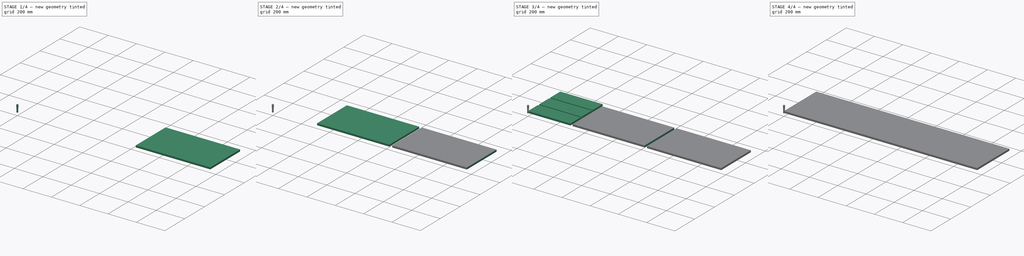
[diagram: build sequence overview — one tinted view per stage of 4, left to right]
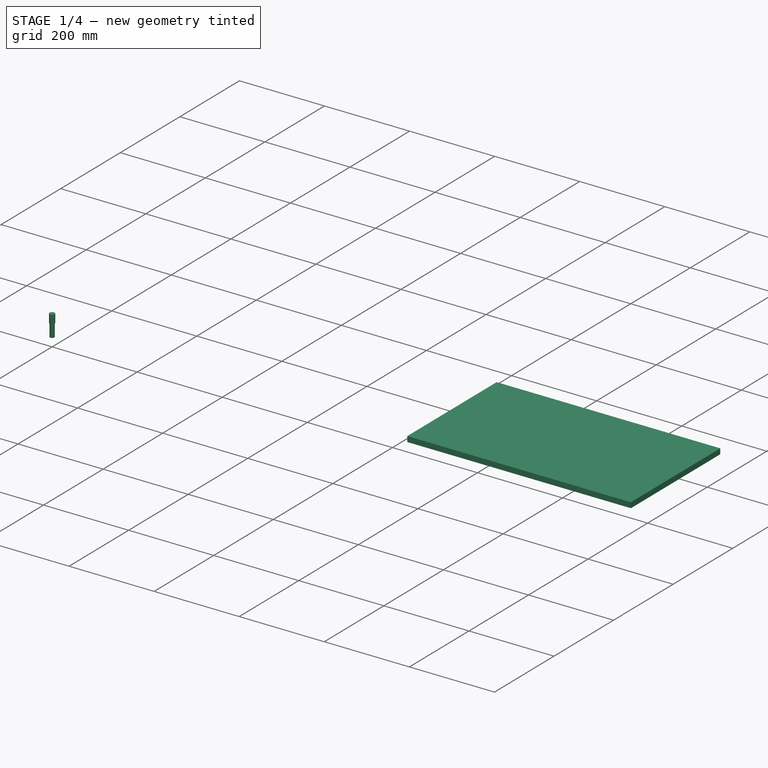
[diagram: stage 1 of 4 — iso view after this stage's code; geometry added in this stage tinted green]
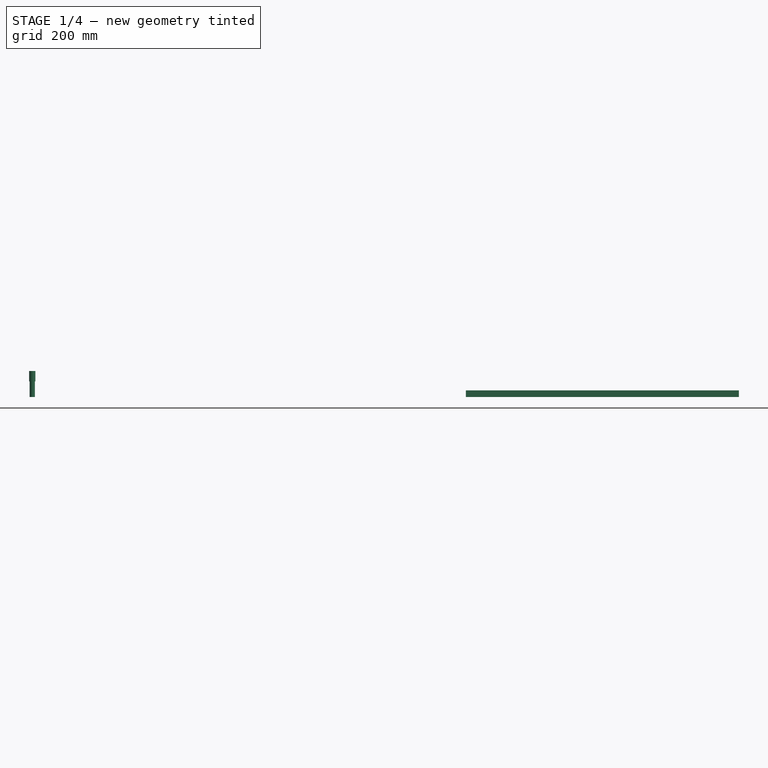
[diagram: stage 1 of 4 — front view after this stage's code; geometry added in this stage tinted green]
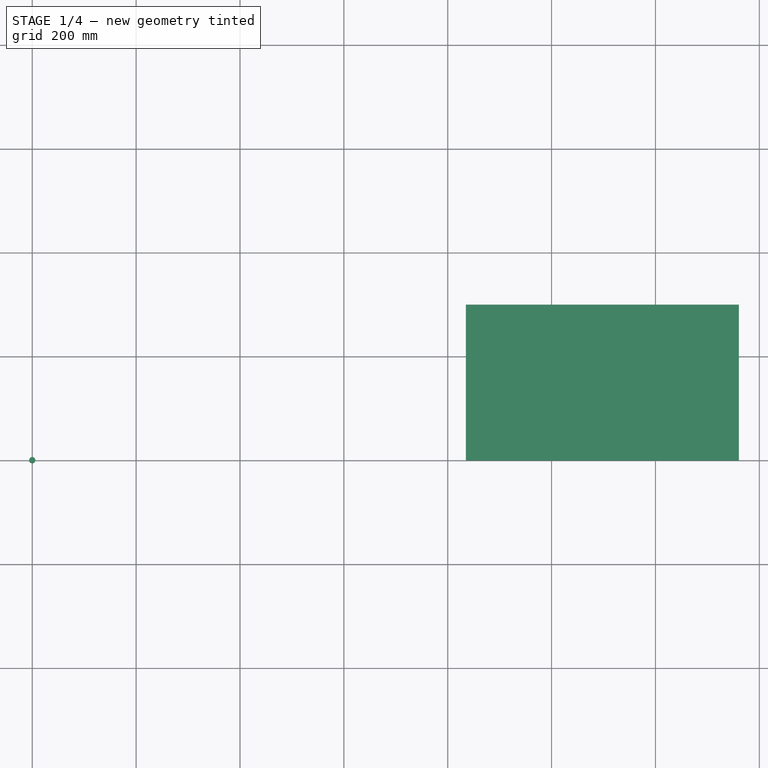
[diagram: stage 1 of 4 — top view after this stage's code; geometry added in this stage tinted green]
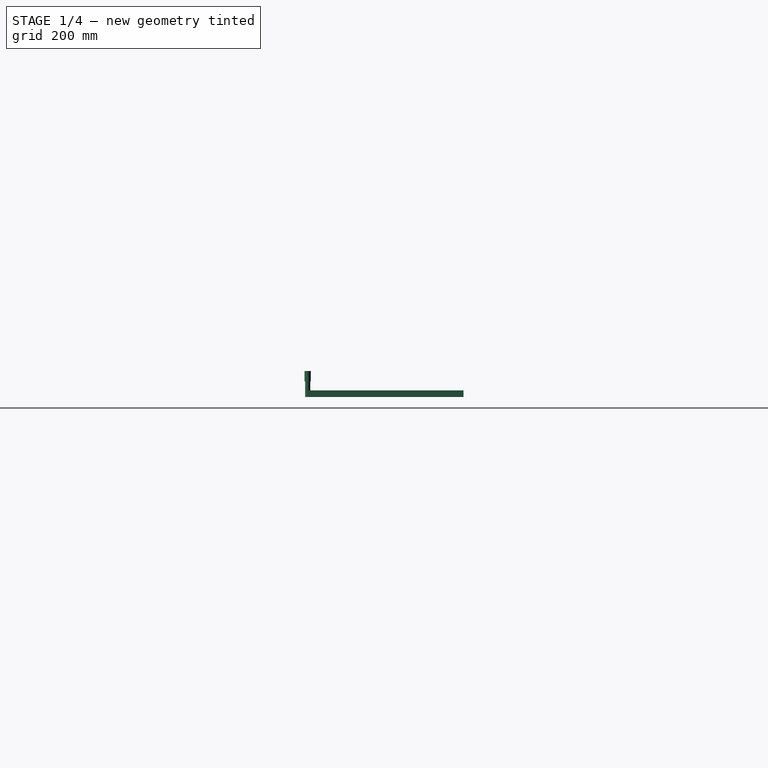
[diagram: stage 1 of 4 — right view after this stage's code; geometry added in this stage tinted green]
FCSTD DOCUMENT  (FreeCAD 0.20RUnknown)
Label: Brownbuilt
License: All rights reserved
LicenseURL: http://en.wikipedia.org/wiki/All_rights_reserved
objects: Path::FeaturePython×7, Part::FeaturePython×5, Sketcher::SketchObject×4, PartDesign::Pad×3, PartDesign::Body×3, App::DocumentObjectGroup×3, PartDesign::Pocket×1, App::FeaturePython×1
note: 23 computed .brp shape members not serialized (recipe doc carries the construction recipe); baked Part::Feature solids carry a one-line shape summary decoded from their .brp

FEATURE [PartDesign::Body] Body001  label="Shelf"
  Group = -> [Sketch001,Pad001]
  Origin = -> Origin001
  Placement = pos=(3,0,0) rot=(0,0,1;0rad)
  Tip = -> Pad001
FEATURE [Sketcher::SketchObject] Sketch003
  FullyConstrained = true
  MapMode = 5
  Support = -> [XY_Plane002]
  expr: Constraints[9] = 500 + 12.8 * 2
  sketch-geometry (4):
    g0: LineSegment StartX=835 StartY=300 StartZ=0 EndX=1360.6 EndY=300 EndZ=0
    g1: LineSegment StartX=1360.6 StartY=300 StartZ=0 EndX=1360.6 EndY=0 EndZ=0
    g2: LineSegment StartX=1360.6 StartY=0 StartZ=0 EndX=835 EndY=0 EndZ=0
    g3: LineSegment StartX=835 StartY=0 StartZ=0 EndX=835 EndY=300 EndZ=0
  constraints (12):
    c: Coincident(g0,g1)
    c: Coincident(g1,g2)
    c: Coincident(g2,g3)
    c: Coincident(g3,g0)
    c: Horizontal(g0)
    c: Horizontal(g2)
    c: Vertical(g1)
    c: Vertical(g3)
    c: DistanceY(g3,g3) = 300
    c: DistanceX(g0,g0) = 525.6
    c: PointOnObject(g-1,g2)
    c: DistanceX(g-1,g2) = 835
FEATURE [PartDesign::Pad] Pad002
  Direction = (0,0,1)
  Length = 12.7
  Length2 = 10
  Profile = -> Sketch003
  ReferenceAxis = -> Sketch003 [N_Axis]
  Type = 0
FEATURE [Part::FeaturePython] ToolBit001  label="10mm_Endmill"  # Path/CAM toolbit (typed FeaturePython)
  BitPropertyNames = Chipload | CuttingEdgeHeight | Diameter | Flutes | Length | Material | ShankDiameter | SpindleDirection
  BitShape = <path>
  Chipload = 0
  CuttingEdgeHeight = 30
  Diameter = 10
  File = <userpath>/MensShed/CNCRouter/FreeCAD/Bit/10mm_Endmill.fctb
  Flutes = 0
  Length = 50
  Material = 0
  ShankDiameter = 12
  ShapeName = endmill
  SpindleDirection = 0
FEATURE [Path::FeaturePython] _0mm_Endmill  label="10mm_Endmill001"  # Path/CAM operation (typed FeaturePython)
  HorizFeed = 15
  HorizRapid = 0
  SpindleDir = 0
  SpindleSpeed = 10000
  Tool = -> ToolBit001
  ToolNumber = 2
  VertFeed = 5
  VertRapid = 0
  expr: HorizRapid = SetupSheet.HorizRapid
  expr: VertRapid = SetupSheet.VertRapid
FEATURE [App::DocumentObjectGroup] Tools
  Group = -> [_0mm_Endmill]
FEATURE [Path::FeaturePython] Profile  label="Slots"  # Path/CAM operation (typed FeaturePython)
  Active = true
  Base = -> [Clone001]
  ClearanceHeight = 17.7
  CoolantMode = 0
  CycleTime = 00:01:54
  Direction = 0
  FinalDepth = 7.7
  HandleMultipleFeatures = 0
  JoinType = 0
  MiterLimit = 0.1
  OffsetExtra = 0
  OpFinalDepth = 12.7
  OpStartDepth = 17.7
  OpStockZMax = 12.7
  OpStockZMin = 0
  OpToolDiameter = 10
  PathParams = {'feedrate': 15.0, 'feedrate_v': 5.0, 'verbose': True, 'resume_height': 15.7, 'retraction': 17.7, 'return_end': True, 'preamble': False, 'start': Vector (299.99999990000003, 217.79999999999998, 17.7)}
  SafeHeight = 15.7
  Side = 1
  SplitArcs = false
  StartDepth = 12.7
  StartPoint = (0,0,0)
  StepDown = 5
  ToolController = -> _0mm_Endmill
  UseComp = true
  UseStartPoint = false
  processCircles = false
  processHoles = false
  processPerimeter = true
  expr: ClearanceHeight = OpStockZMax + SetupSheet.ClearanceHeightOffset
  expr: FinalDepth = 12.7 - 5
  expr: SafeHeight = OpStockZMax + SetupSheet.SafeHeightOffset
  expr: StartDepth = 12.7
  expr: StepDown = 5
FEATURE [Path::FeaturePython] Profile001  label="SideProfile"  # Path/CAM operation (typed FeaturePython)
  Active = true
  AreaParams:
    Tolerance = 1e-07
    FitArcs = True
    Simplify = False
    CleanDistance = 0.0
    Accuracy = 0.01
    Unit = 1.0
    MinArcPoints = 4
    MaxArcPoints = 100
    ClipperScale = 10000000.0
    Fill = 0
    Coplanar = 0
    Reorient = True
    Outline = False
    Explode = False
    OpenMode = 0
    Deflection = 0.01
    SubjectFill = 0
    ClipFill = 0
    Offset = 5.0
    ExtraPass = 0
    Stepover = 0.0
    LastStepover = 0.0
    JoinType = 0
    EndType = 0
    MiterLimit = 2.0
    RoundPrecision = 0.0
    PocketMode = 0
    ToolRadius = 1.0
    PocketExtraOffset = 0.0
    PocketStepover = 0.0
    PocketLastStepover = 0.0
    FromCenter = False
    Angle = 45.0
    AngleShift = 0.0
    Shift = 0.0
    Thicken = False
    SectionCount = -1
    Stepdown = 1.0
    SectionOffset = 0.0
    SectionTolerance = 1e-06
    SectionMode = 2
    Project = False
  Base = -> [Clone001]
  ClearanceHeight = 17.7
  CoolantMode = 0
  CycleTime = 00:04:55
  Direction = 0
  FinalDepth = 0
  HandleMultipleFeatures = 0
  JoinType = 0
  MiterLimit = 0.1
  OffsetExtra = 0
  OpFinalDepth = 0
  OpStartDepth = 12.7
  OpStockZMax = 12.7
  OpStockZMin = 0
  OpToolDiameter = 10
  PathParams = {'orientation': 1, 'feedrate': 15.0, 'feedrate_v': 5.0, 'verbose': True, 'resume_height': 15.7, 'retraction': 17.7, 'return_end': True, 'preamble': False}
  SafeHeight = 15.7
  Side = 0
  SplitArcs = false
  StartDepth = 12.7
  StartPoint = (0,0,0)
  StepDown = 5
  ToolController = -> _0mm_Endmill
  UseComp = true
  UseStartPoint = false
  processCircles = false
  processHoles = false
  processPerimeter = true
  expr: ClearanceHeight = OpStockZMax + SetupSheet.ClearanceHeightOffset
  expr: FinalDepth = 0
  expr: SafeHeight = OpStockZMax + SetupSheet.SafeHeightOffset
  expr: StartDepth = 12.7
  expr: StepDown = 5
FEATURE [Path::FeaturePython] Profile002  label="TopsShelves"  # Path/CAM operation (typed FeaturePython)
  Active = true
  AreaParams:
    Tolerance = 1e-07
    FitArcs = True
    Simplify = False
    CleanDistance = 0.0
    Accuracy = 0.01
    Unit = 1.0
    MinArcPoints = 4
    MaxArcPoints = 100
    ClipperScale = 10000000.0
    Fill = 0
    Coplanar = 0
    Reorient = True
    Outline = False
    Explode = False
    OpenMode = 0
    Deflection = 0.01
    SubjectFill = 0
    ClipFill = 0
    Offset = 5.0
    ExtraPass = 0
    Stepover = 0.0
    LastStepover = 0.0
    JoinType = 0
    EndType = 0
    MiterLimit = 2.0
    RoundPrecision = 0.0
    PocketMode = 0
    ToolRadius = 1.0
    PocketExtraOffset = 0.0
    PocketStepover = 0.0
    PocketLastStepover = 0.0
    FromCenter = False
    Angle = 45.0
    AngleShift = 0.0
    Shift = 0.0
    Thicken = False
    SectionCount = -1
    Stepdown = 1.0
    SectionOffset = 0.0
    SectionTolerance = 1e-06
    SectionMode = 2
    Project = False
  Base = -> [Clone,Clone002]
  ClearanceHeight = 17.7
  CoolantMode = 0
  CycleTime = 00:12:18
  Direction = 0
  FinalDepth = 0
  HandleMultipleFeatures = 0
  JoinType = 0
  MiterLimit = 0.1
  OffsetExtra = 0
  OpFinalDepth = 12.7
  OpStartDepth = 17.7
  OpStockZMax = 12.7
  OpStockZMin = 0
  OpToolDiameter = 10
  PathParams = {'orientation': 1, 'feedrate': 15.0, 'feedrate_v': 5.0, 'verbose': True, 'resume_height': 15.7, 'retraction': 17.7, 'return_end': True, 'preamble': False, 'start': Vector (828.5355338224005, 303.53553387240134, 17.7)}
  SafeHeight = 15.7
  Side = 0
  SplitArcs = false
  StartDepth = 12.7
  StartPoint = (0,0,0)
  StepDown = 5
  ToolController = -> _0mm_Endmill
  UseComp = true
  UseStartPoint = false
  processCircles = false
  processHoles = false
  processPerimeter = true
  expr: ClearanceHeight = OpStockZMax + SetupSheet.ClearanceHeightOffset
  expr: FinalDepth = 0
  expr: SafeHeight = OpStockZMax + SetupSheet.SafeHeightOffset
  expr: StartDepth = 12.7
  expr: StepDown = 5
FEATURE [Path::FeaturePython] DressupTag  # Path/CAM operation (typed FeaturePython)
  Angle = 45
  Base = -> Profile001
  Height = 2
  Positions = (4) [(305,244.2,0),(305,81.4,0),(-5,81.4,0),(-5,244.2,0)]
  Radius = 0
  SegmentationFactor = 50
  Width = 25
FEATURE [Path::FeaturePython] DressupTag001  # Path/CAM operation (typed FeaturePython)
  Angle = 45
  Base = -> Profile002
  Disabled = [3,7]
  Height = 2
  Positions = (8) [(830,198.27,1e-06),(830,66.65,1e-06),(310,71.99,1e-06),(310,238.8,1e-06),(1372.6,209.21,1e-06),(1372.6,64,1e-06),(837,75.71,1e-06),(837,203.4,1e-06)]
  Radius = 0
  SegmentationFactor = 50
  Width = 25
FEATURE [App::DocumentObjectGroup] Operations
  Group = -> [Profile,DressupTag,DressupTag001]
FEATURE [Path::FeaturePython] Job  # Path/CAM operation (typed FeaturePython)
  CycleTime = 00:19:07
  Fixtures = G54
  GeometryTolerance = 0.01
  JobType = 0
  Model = -> Model
  Operations = -> Operations
  OrderOutputBy = 0
  PostProcessor = 2
  PostProcessorOutputFile = %D/%d.ngc
  SetupSheet = -> SetupSheet
  SplitOutput = false
  Stock = -> Stock001
  Tools = -> Tools
note: 1 file-system path scrubbed to <path> (originals preserved in the JSON sidecar)
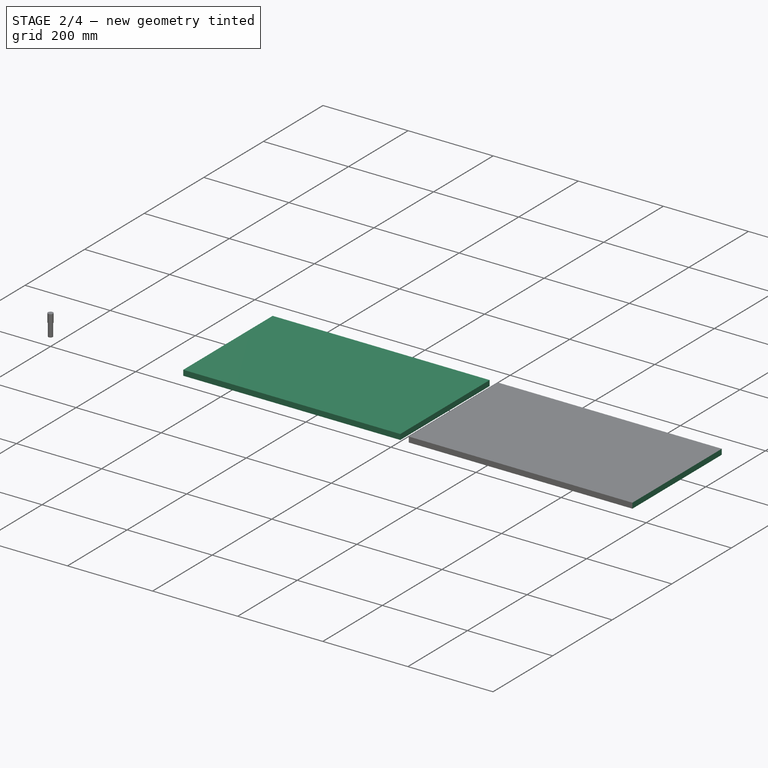
[diagram: stage 2 of 4 — iso view after this stage's code; geometry added in this stage tinted green]
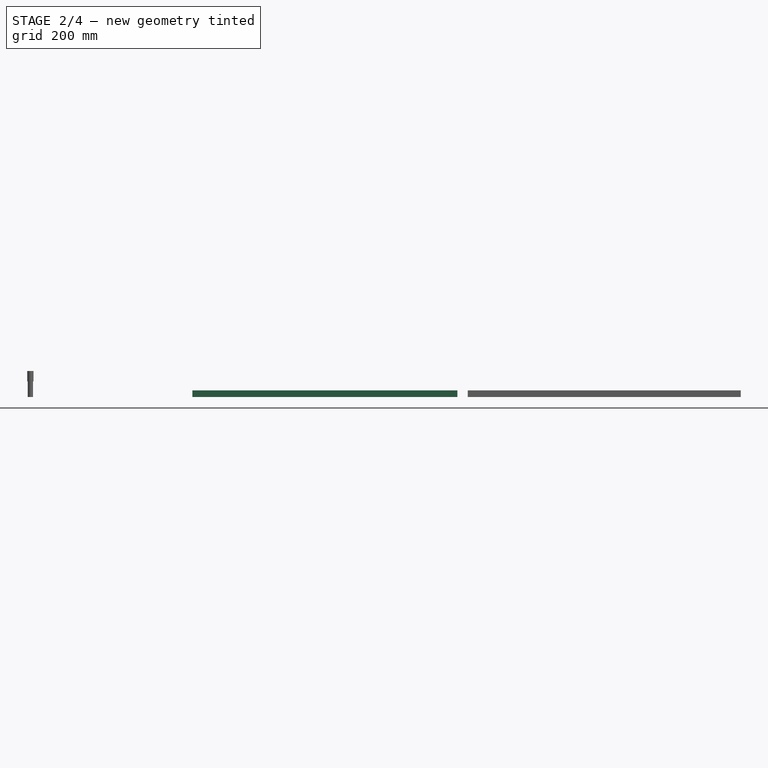
[diagram: stage 2 of 4 — front view after this stage's code; geometry added in this stage tinted green]
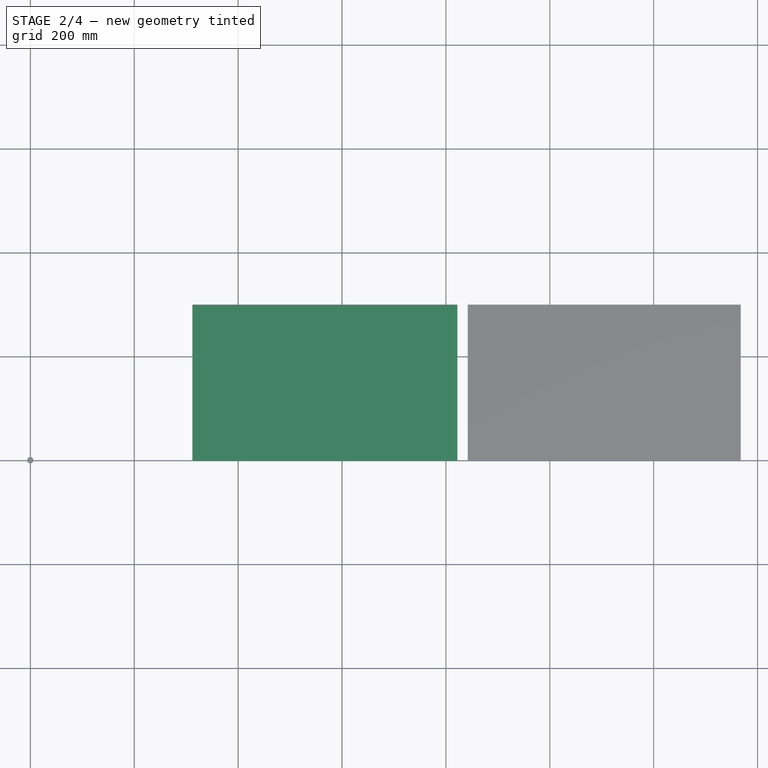
[diagram: stage 2 of 4 — top view after this stage's code; geometry added in this stage tinted green]
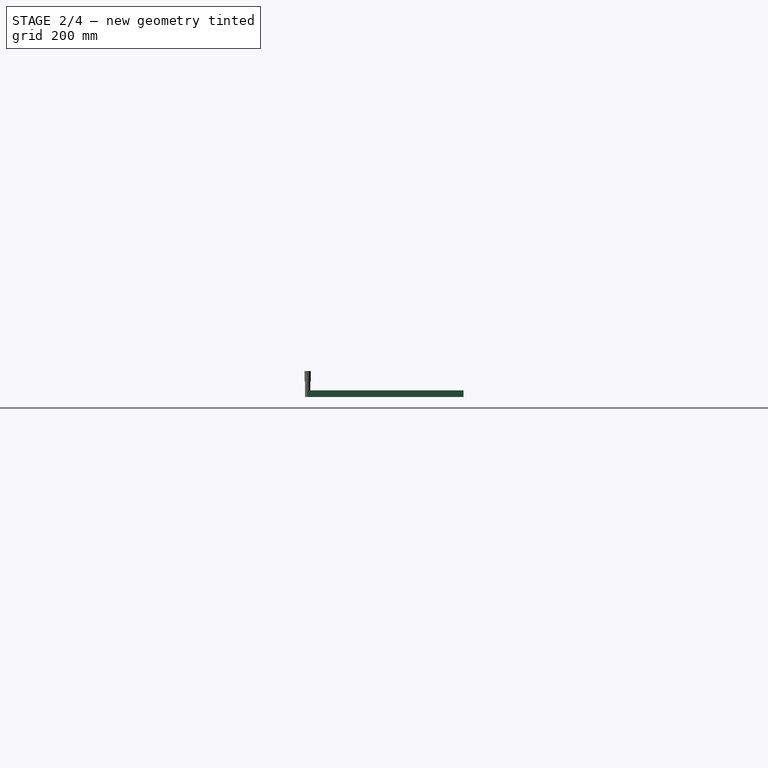
[diagram: stage 2 of 4 — right view after this stage's code; geometry added in this stage tinted green]
FEATURE [PartDesign::Body] Body  label="Side"
  Group = -> [Sketch,Pad,Sketch002,Pocket]
  Origin = -> Origin
  Tip = -> Pocket
FEATURE [PartDesign::Pad] Pad001
  Direction = (0,0,1)
  Length = 12.7
  Length2 = 10
  Profile = -> Sketch001
  ReferenceAxis = -> Sketch001 [N_Axis]
  Type = 0
FEATURE [Part::FeaturePython] Clone002  label="Model-Top"  # Draft clone (typed FeaturePython)
  AttacherType = Attacher::AttachEngine3D
  Fuse = false
  Objects = -> [Body002]
  PathResource = Model
  Placement = pos=(7,0,0) rot=(0,0,1;0rad)
  Scale = (1,1,1)
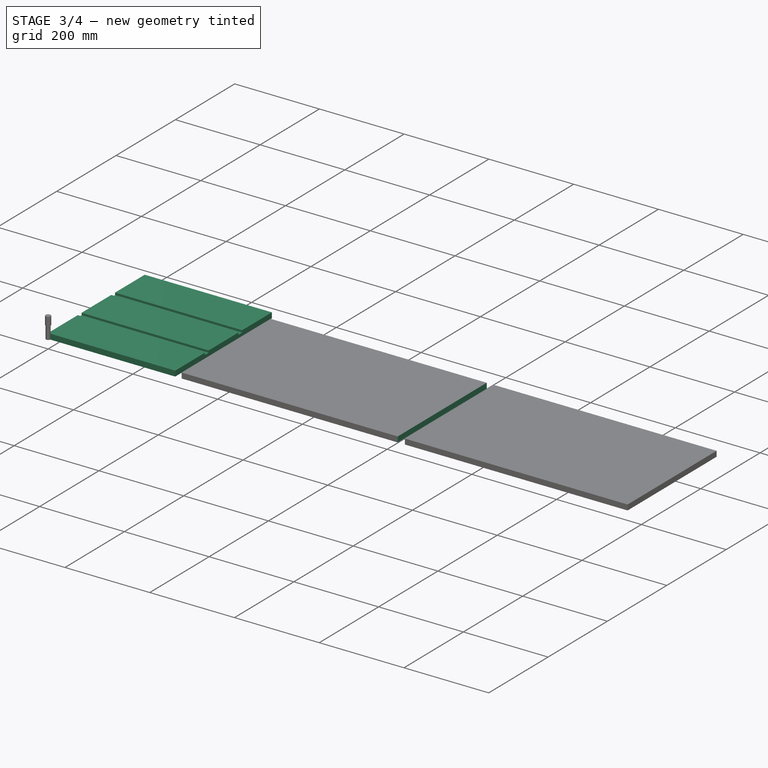
[diagram: stage 3 of 4 — iso view after this stage's code; geometry added in this stage tinted green]
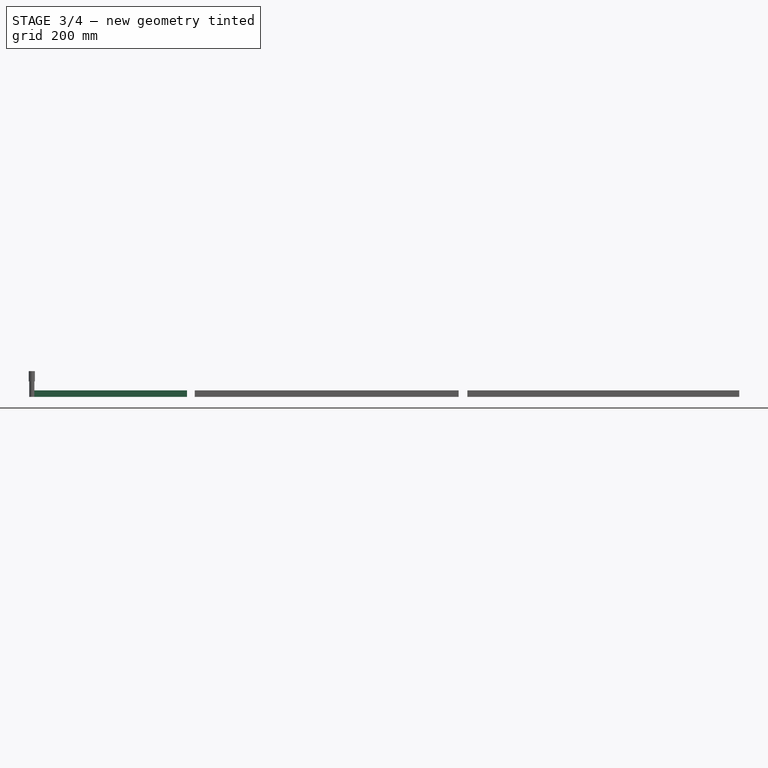
[diagram: stage 3 of 4 — front view after this stage's code; geometry added in this stage tinted green]
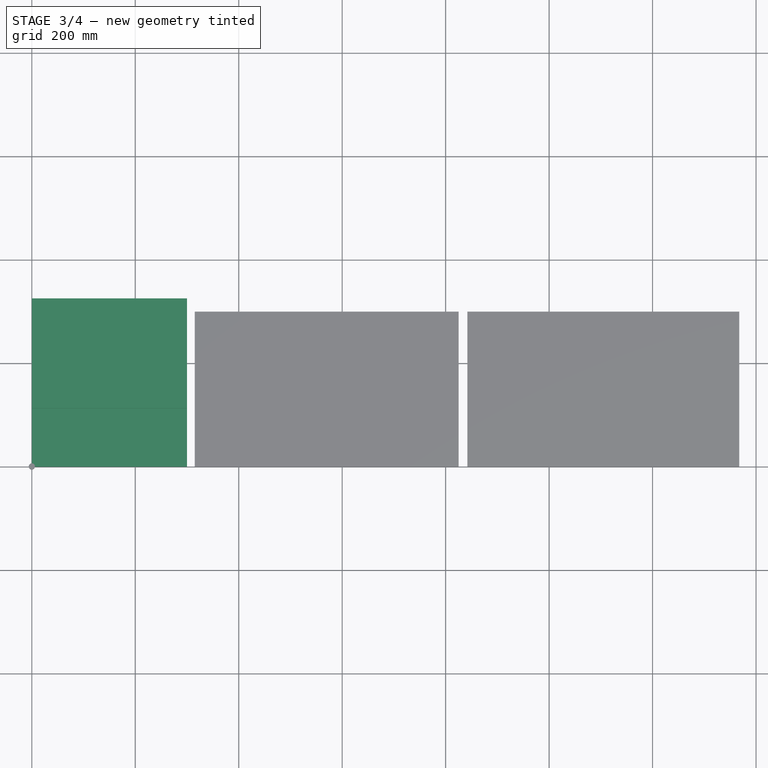
[diagram: stage 3 of 4 — top view after this stage's code; geometry added in this stage tinted green]
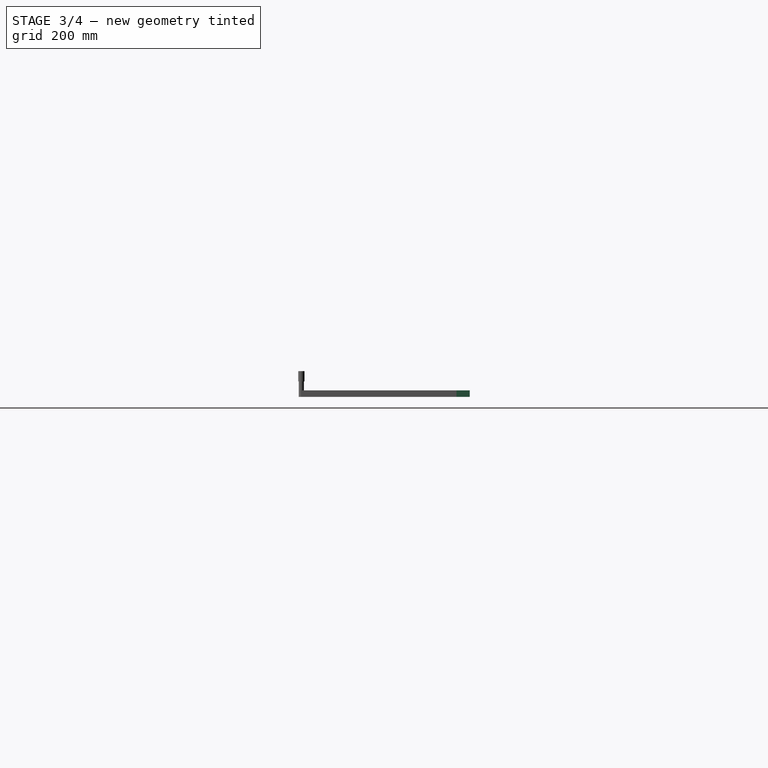
[diagram: stage 3 of 4 — right view after this stage's code; geometry added in this stage tinted green]
FEATURE [Sketcher::SketchObject] Sketch
  FullyConstrained = true
  MapMode = 5
  Support = -> [XY_Plane]
  sketch-geometry (4):
    g0: LineSegment StartX=0 StartY=0 StartZ=0 EndX=300 EndY=0 EndZ=0
    g1: LineSegment StartX=300 StartY=0 StartZ=0 EndX=300 EndY=325.6 EndZ=0
    g2: LineSegment StartX=300 StartY=325.6 StartZ=0 EndX=0 EndY=325.6 EndZ=0
    g3: LineSegment StartX=0 StartY=325.6 StartZ=0 EndX=0 EndY=0 EndZ=0
  constraints (11):
    c: Coincident(g0,g1)
    c: Coincident(g1,g2)
    c: Coincident(g2,g3)
    c: Coincident(g3,g0)
    c: Horizontal(g0)
    c: Horizontal(g2)
    c: Vertical(g1)
    c: Vertical(g3)
    c: Coincident(g0,g-1)
    c: DistanceX(g2,g2) = 300
    c: DistanceY(g3,g3) = 325.6
FEATURE [PartDesign::Pad] Pad
  Direction = (0,0,1)
  Length = 12.7
  Length2 = 10
  Profile = -> Sketch
  ReferenceAxis = -> Sketch [N_Axis]
  Type = 0
FEATURE [Sketcher::SketchObject] Sketch001
  FullyConstrained = true
  MapMode = 5
  Support = -> [XY_Plane001]
  sketch-geometry (4):
    g0: LineSegment StartX=312 StartY=0 StartZ=0 EndX=822 EndY=0 EndZ=0
    g1: LineSegment StartX=822 StartY=0 StartZ=0 EndX=822 EndY=300 EndZ=0
    g2: LineSegment StartX=822 StartY=300 StartZ=0 EndX=312 EndY=300 EndZ=0
    g3: LineSegment StartX=312 StartY=300 StartZ=0 EndX=312 EndY=0 EndZ=0
  constraints (12):
    c: Coincident(g0,g1)
    c: Coincident(g1,g2)
    c: Coincident(g2,g3)
    c: Coincident(g3,g0)
    c: Horizontal(g0)
    c: Horizontal(g2)
    c: Vertical(g1)
    c: Vertical(g3)
    c: DistanceY(g3,g3) = 300
    c: DistanceX(g2,g2) = 510
    c: PointOnObject(g0,g-1)
    c: DistanceX(g-1,g0) = 312
FEATURE [Sketcher::SketchObject] Sketch002
  FullyConstrained = true
  MapMode = 5
  Placement = pos=(0,0,12.7) rot=(0,0,1;0rad)
  Support = -> [Pad]
  sketch-geometry (8):
    g0: LineSegment StartX=0 StartY=225.6 StartZ=0 EndX=350 EndY=225.6 EndZ=0
    g1: LineSegment StartX=350 StartY=225.6 StartZ=0 EndX=350 EndY=212.8 EndZ=0
    g2: LineSegment StartX=350 StartY=212.8 StartZ=0 EndX=0 EndY=212.8 EndZ=0
    g3: LineSegment StartX=0 StartY=212.8 StartZ=0 EndX=0 EndY=225.6 EndZ=0
    g4: LineSegment StartX=0 StartY=112.8 StartZ=0 EndX=350 EndY=112.8 EndZ=0
    g5: LineSegment StartX=350 StartY=112.8 StartZ=0 EndX=350 EndY=100 EndZ=0
    g6: LineSegment StartX=350 StartY=100 StartZ=0 EndX=0 EndY=100 EndZ=0
    g7: LineSegment StartX=0 StartY=100 StartZ=0 EndX=0 EndY=112.8 EndZ=0
  constraints (24):
    c: Coincident(g0,g1)
    c: Coincident(g1,g2)
    c: Coincident(g2,g3)
    c: Coincident(g3,g0)
    c: Horizontal(g0)
    c: Horizontal(g2)
    c: Vertical(g1)
    c: Vertical(g3)
    c: Coincident(g4,g5)
    c: Coincident(g5,g6)
    c: Coincident(g6,g7)
    c: Coincident(g7,g4)
    c: Horizontal(g4)
    c: Horizontal(g6)
    c: Vertical(g5)
    c: Vertical(g7)
    c: PointOnObject(g4,g-2)
    c: DistanceX(g2,g2) = 350
    c: Equal(g4,g0)
    c: PointOnObject(g2,g-2)
    c: DistanceY(g3,g3) = 12.8
    c: Equal(g7,g3)
    c: DistanceY(g-1,g6) = 100
    c: DistanceY(g4,g2) = 100
FEATURE [PartDesign::Pocket] Pocket
  BaseFeature = -> Pad
  Direction = (0,0,-1)
  Length = 5
  Length2 = 5
  Profile = -> Sketch002
  ReferenceAxis = -> Sketch002 [N_Axis]
  Type = 0
FEATURE [PartDesign::Body] Body002  label="Top"
  Group = -> [Sketch003,Pad002]
  Origin = -> Origin002
  Placement = pos=(7,0,0) rot=(0,0,1;0rad)
  Tip = -> Pad002
FEATURE [App::FeaturePython] SetupSheet  # Path/CAM operation (typed FeaturePython)
  ClearanceHeightExpression = OpStockZMax+SetupSheet.ClearanceHeightOffset
  ClearanceHeightOffset = 5
  CoolantMode = 0
  CoolantModes = None | Flood | Mist
  FinalDepthExpression = OpFinalDepth
  HorizRapid = 0
  SafeHeightExpression = OpStockZMax+SetupSheet.SafeHeightOffset
  SafeHeightOffset = 3
  StartDepthExpression = OpStartDepth
  StepDownExpression = OpToolDiameter
  VertRapid = 0
FEATURE [Part::FeaturePython] Clone  label="Model-Shelf"  # Draft clone (typed FeaturePython)
  AttacherType = Attacher::AttachEngine3D
  Fuse = false
  Objects = -> [Body001]
  PathResource = Model
  Placement = pos=(3,0,0) rot=(0,0,1;0rad)
  Scale = (1,1,1)
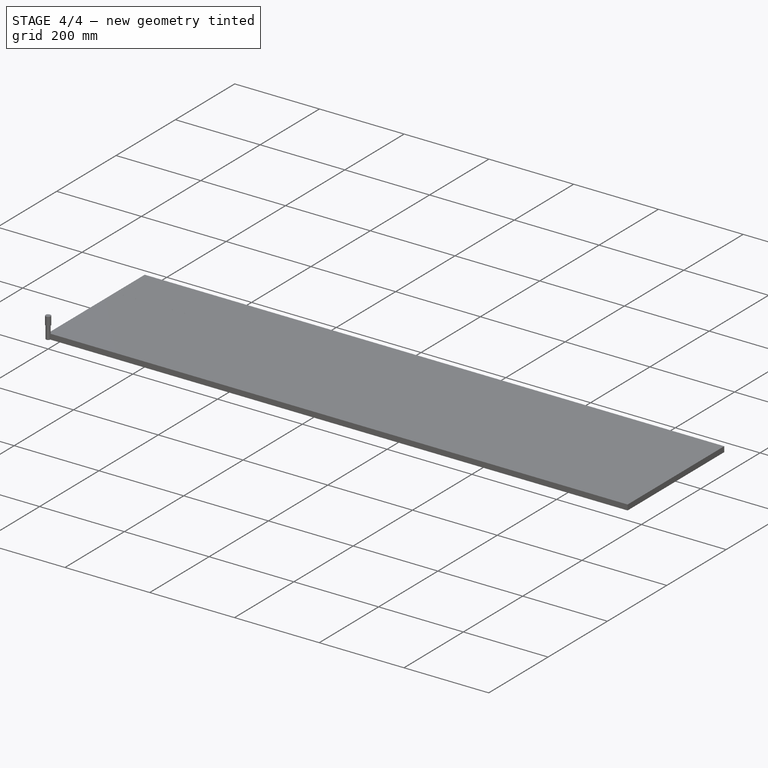
[diagram: stage 4 of 4 — iso view after this stage's code; geometry added in this stage tinted green]
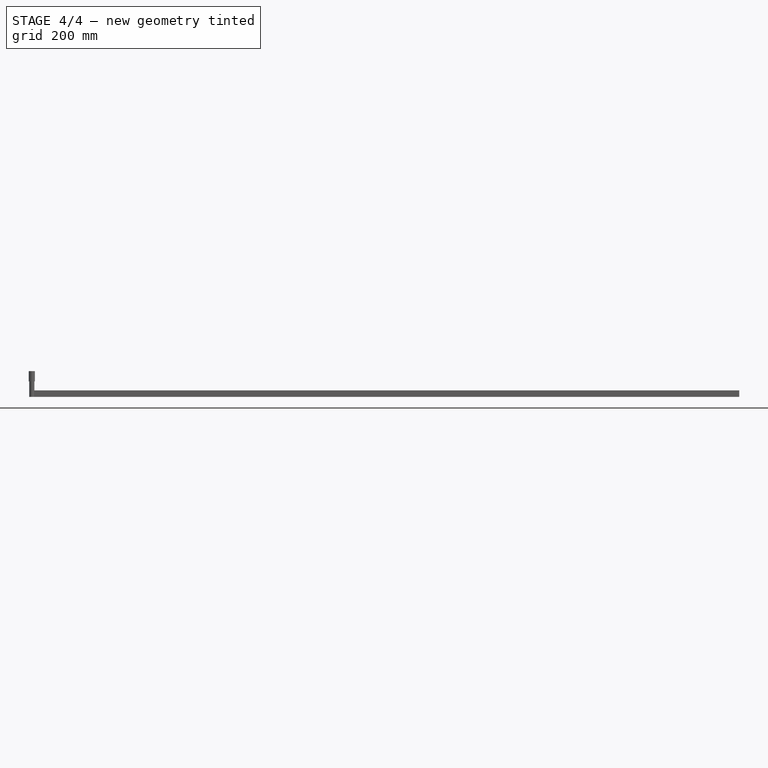
[diagram: stage 4 of 4 — front view after this stage's code; geometry added in this stage tinted green]
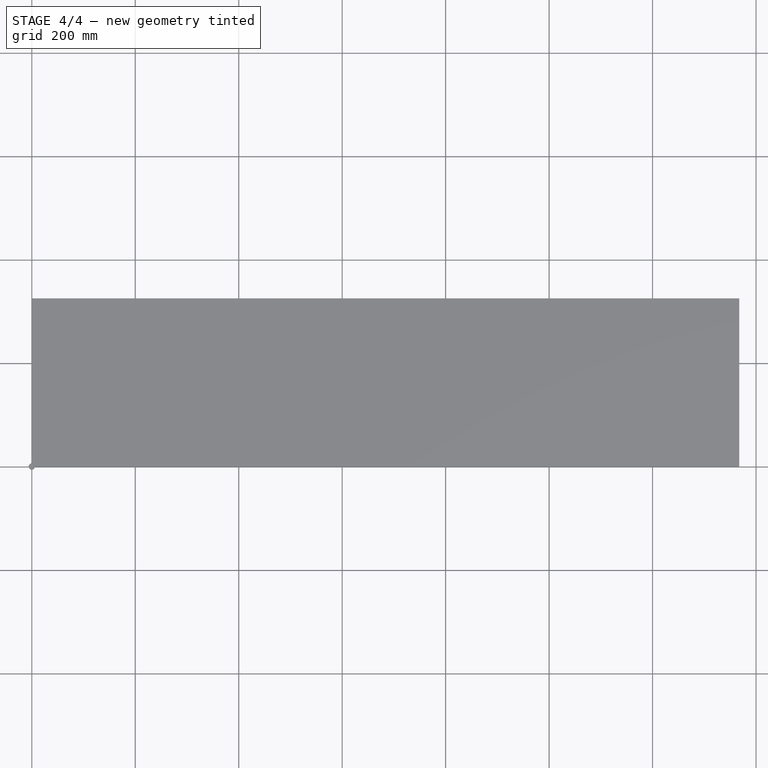
[diagram: stage 4 of 4 — top view after this stage's code; geometry added in this stage tinted green]
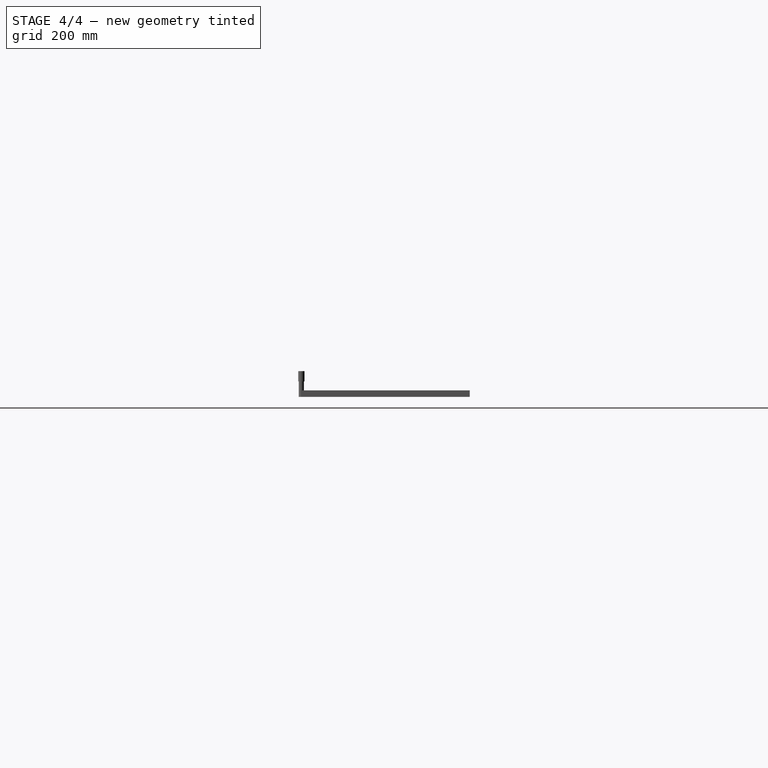
[diagram: stage 4 of 4 — right view after this stage's code; geometry added in this stage tinted green]
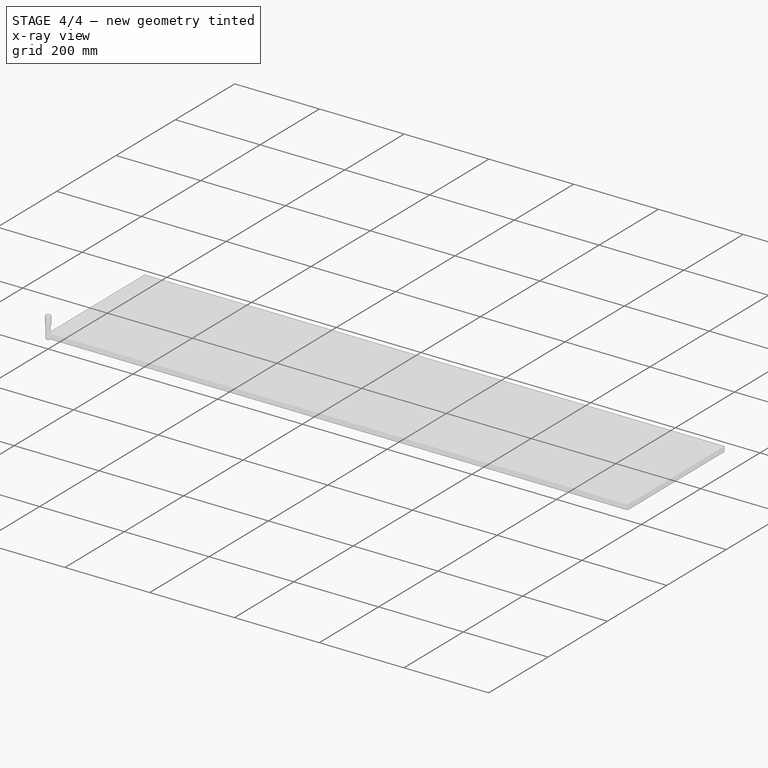
[diagram: stage 4 of 4 — x-ray composite at the iso view; earlier geometry ghosted, this stage's added geometry solid]
FEATURE [Part::FeaturePython] Clone001  label="Model-Side"  # Draft clone (typed FeaturePython)
  AttacherType = Attacher::AttachEngine3D
  Fuse = false
  Objects = -> [Body]
  PathResource = Model
  Scale = (1,1,1)
FEATURE [App::DocumentObjectGroup] Model
  Group = -> [Clone,Clone001,Clone002]
FEATURE [Part::FeaturePython] Stock001  # WARN: FeaturePython — macro-defined, semantics opaque (R4)
  Height = 12.7
  Length = 1367.6
  StockType = CreateBox
  Width = 325.6
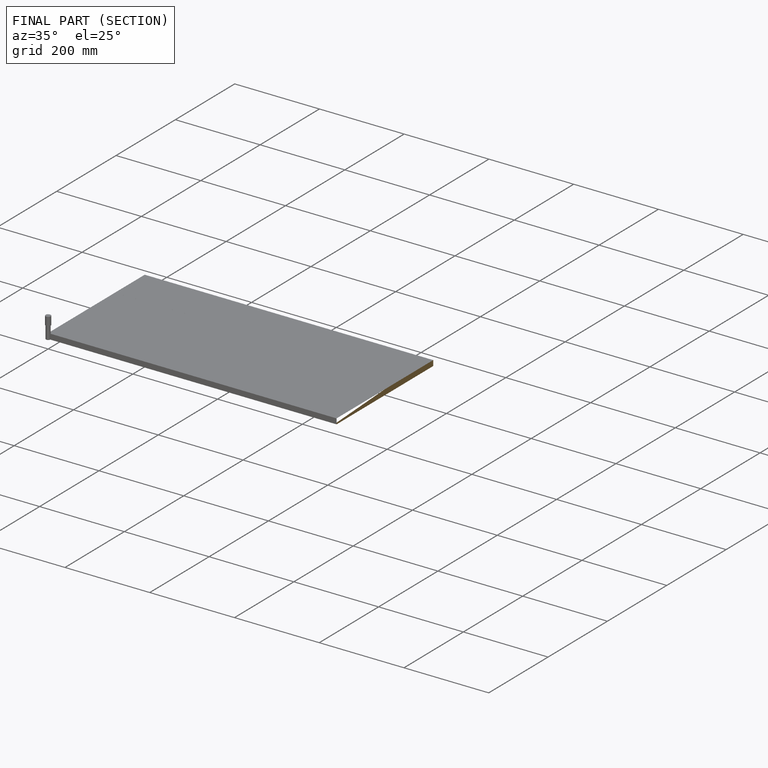
[diagram: finished part — half-section view (interior)]
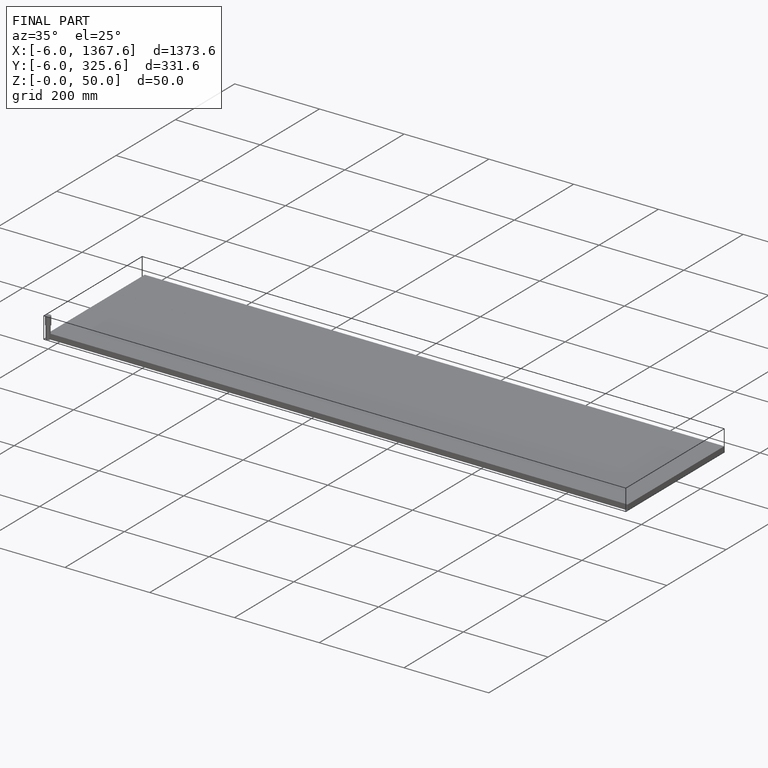
[diagram: finished part — iso view with bounding-box wireframe]
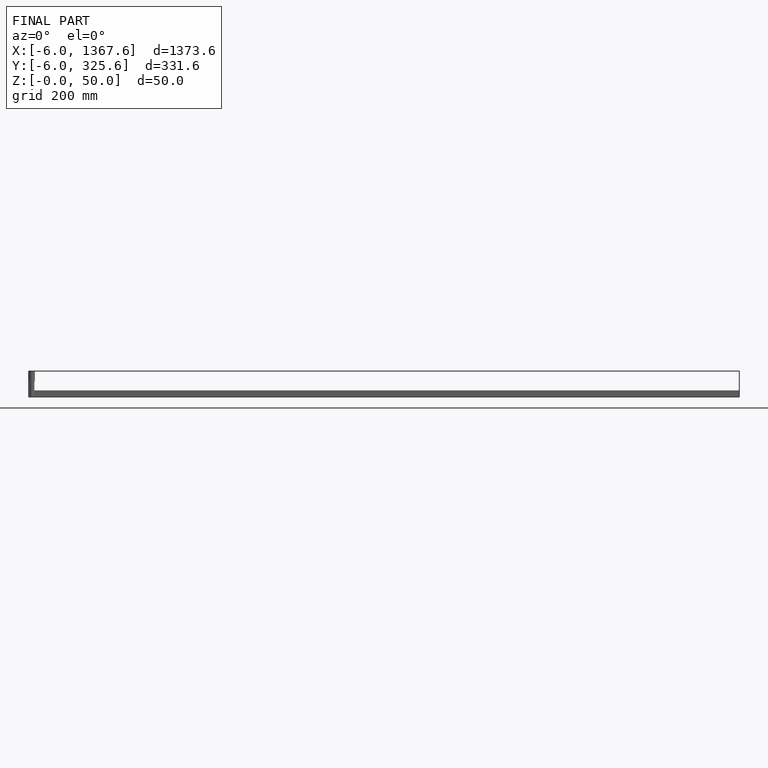
[diagram: finished part — front view with bounding-box wireframe]
